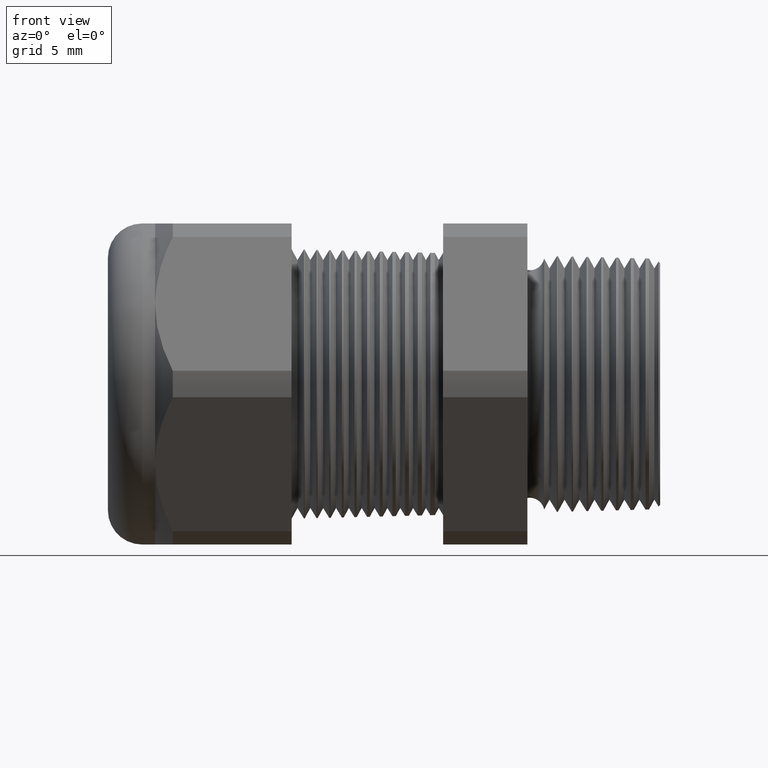
[diagram: clean part render]
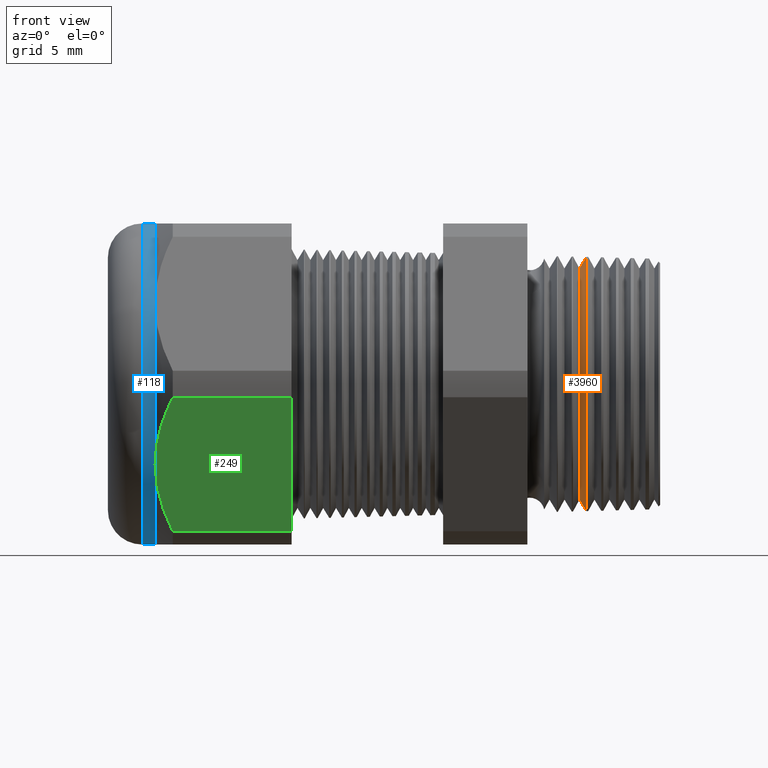
[diagram: same view with three faces highlighted in distinct colors, each labeled with its STEP entity id]
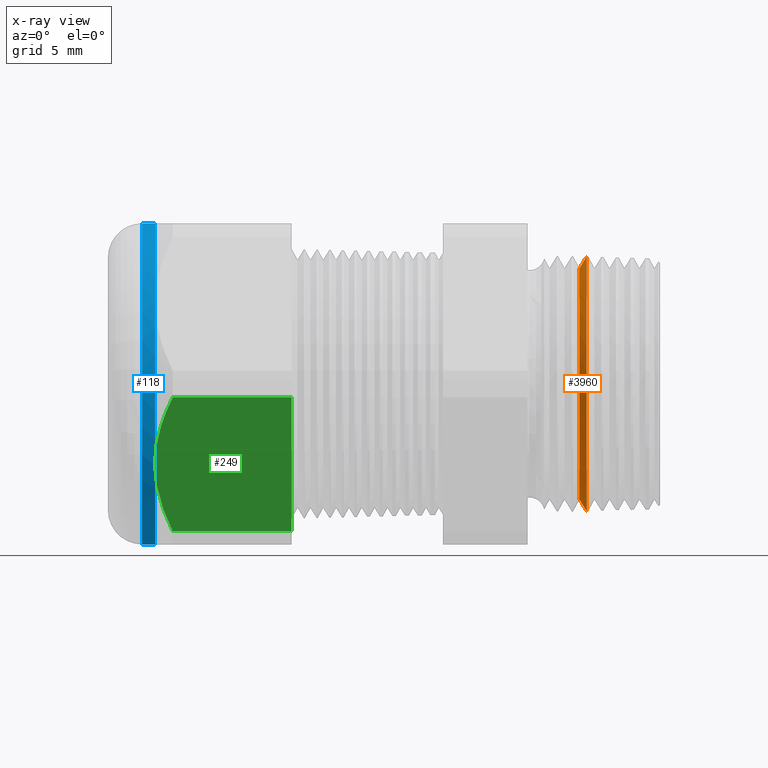
[diagram: x-ray of the same camera — body ghosted, the three highlighted faces saturated]
A machine part, front view with three faces highlighted in distinct colors.
The next image is the same camera in x-ray (body ghosted, the three faces saturated) — at least one of them is partly hidden behind the body in this view.
Their STEP definitions:

[orange] entity #3960 — the highlighted conical surface has half-angle 58.5 deg.
#21 = EDGE_CURVE ( 'NONE', #4418, #4415, #4696, .T. ) ;
#2367 = CIRCLE ( 'NONE', #2428, 0.2701319446236517000 ) ;
#2418 = DIRECTION ( 'NONE',  ( 0.0000000000000000000, 0.0000000000000000000, -1.000000000000000000 ) ) ;
#2419 = DIRECTION ( 'NONE',  ( 1.000000000000000000, 0.0000000000000000000, 0.0000000000000000000 ) ) ;
#2420 = CARTESIAN_POINT ( 'NONE',  ( -0.1884707356790751900, 0.0000000000000000000, 0.0000000000000000000 ) ) ;
#2421 = AXIS2_PLACEMENT_3D ( 'NONE', #2420, #2419, #2418 ) ;
#2423 = CONICAL_SURFACE ( 'NONE', #2421, 0.2701319446236517000, 1.021017612416701600 ) ;
#2424 = FACE_OUTER_BOUND ( 'NONE', #3961, .T. ) ;
#2425 = DIRECTION ( 'NONE',  ( 0.0000000000000000000, 0.0000000000000000000, -1.000000000000000000 ) ) ;
#2426 = DIRECTION ( 'NONE',  ( 1.000000000000000000, 0.0000000000000000000, 0.0000000000000000000 ) ) ;
#2427 = CARTESIAN_POINT ( 'NONE',  ( -0.1884707356790751900, 0.0000000000000000000, 0.0000000000000000000 ) ) ;
#2428 = AXIS2_PLACEMENT_3D ( 'NONE', #2427, #2426, #2425 ) ;
#3081 = DIRECTION ( 'NONE',  ( 0.5224985647159328100, 0.0000000000000000000, -0.8526401643541021700 ) ) ;
#3082 = VECTOR ( 'NONE', #3081, 39.37007874015748100 ) ;
#3083 = CARTESIAN_POINT ( 'NONE',  ( -0.1884707356790751900, 0.0000000000000000000, -0.2701319446236517000 ) ) ;
#3084 = LINE ( 'NONE', #3083, #3082 ) ;
#3166 = CARTESIAN_POINT ( 'NONE',  ( -0.1720291532523846000, 3.636737692998317700E-017, -0.2969621686457153400 ) ) ;
#3172 = CARTESIAN_POINT ( 'NONE',  ( -0.1720291532523846000, 0.0000000000000000000, 0.2969621686457153400 ) ) ;
#3173 = DIRECTION ( 'NONE',  ( 0.5224985647159328100, 1.044183048100724200E-016, 0.8526401643541021700 ) ) ;
#3174 = VECTOR ( 'NONE', #3173, 39.37007874015748100 ) ;
#3175 = CARTESIAN_POINT ( 'NONE',  ( -0.1884707356790751900, 3.308162213308051400E-017, 0.2701319446236517000 ) ) ;
#3176 = LINE ( 'NONE', #3175, #3174 ) ;
#3236 = CARTESIAN_POINT ( 'NONE',  ( -0.1884707356790751900, 0.0000000000000000000, 0.2701319446236517000 ) ) ;
#3237 = CARTESIAN_POINT ( 'NONE',  ( -0.1884707356790751900, 3.477493759266634500E-017, -0.2701319446236517000 ) ) ;
#3939 = ORIENTED_EDGE ( 'NONE', *, *, #4414, .F. ) ;
#3940 = ORIENTED_EDGE ( 'NONE', *, *, #3957, .T. ) ;
#3941 = ORIENTED_EDGE ( 'NONE', *, *, #4366, .T. ) ;
#3942 = ORIENTED_EDGE ( 'NONE', *, *, #21, .T. ) ;
#3957 = EDGE_CURVE ( 'NONE', #4445, #4444, #2367, .T. ) ;
#3960 = ADVANCED_FACE ( 'NONE', ( #2424 ), #2423, .T. ) ;
#3961 = EDGE_LOOP ( 'NONE', ( #3939, #3940, #3941, #3942 ) ) ;
#4366 = EDGE_CURVE ( 'NONE', #4444, #4418, #3084, .T. ) ;
#4414 = EDGE_CURVE ( 'NONE', #4445, #4415, #3176, .T. ) ;
#4415 = VERTEX_POINT ( 'NONE', #3172 ) ;
#4418 = VERTEX_POINT ( 'NONE', #3166 ) ;
#4444 = VERTEX_POINT ( 'NONE', #3237 ) ;
#4445 = VERTEX_POINT ( 'NONE', #3236 ) ;
#4692 = DIRECTION ( 'NONE',  ( 0.0000000000000000000, 0.0000000000000000000, -1.000000000000000000 ) ) ;
#4693 = DIRECTION ( 'NONE',  ( -1.000000000000000000, 0.0000000000000000000, 0.0000000000000000000 ) ) ;
#4694 = CARTESIAN_POINT ( 'NONE',  ( -0.1720291532523846000, 0.0000000000000000000, 0.0000000000000000000 ) ) ;
#4695 = AXIS2_PLACEMENT_3D ( 'NONE', #4694, #4693, #4692 ) ;
#4696 = CIRCLE ( 'NONE', #4695, 0.2969621686457154000 ) ;

[blue] entity #118 — the highlighted cylindrical surface (partial cylindrical patch) has radius 9.525 mm, axis along (1, 0, 0).
#98 = VERTEX_POINT ( 'NONE', #4906 ) ;
#105 = ORIENTED_EDGE ( 'NONE', *, *, #110, .T. ) ;
#106 = ORIENTED_EDGE ( 'NONE', *, *, #861, .T. ) ;
#107 = EDGE_LOOP ( 'NONE', ( #108, #105, #106, #140, #136, #122 ) ) ;
#108 = ORIENTED_EDGE ( 'NONE', *, *, #879, .F. ) ;
#110 = EDGE_CURVE ( 'NONE', #895, #894, #4941, .T. ) ;
#118 = ADVANCED_FACE ( 'NONE', ( #4930 ), #4927, .T. ) ;
#122 = ORIENTED_EDGE ( 'NONE', *, *, #129, .F. ) ;
#129 = EDGE_CURVE ( 'NONE', #880, #98, #4972, .T. ) ;
#130 = EDGE_CURVE ( 'NONE', #190, #889, #4967, .T. ) ;
#132 = EDGE_CURVE ( 'NONE', #98, #190, #4962, .T. ) ;
#136 = ORIENTED_EDGE ( 'NONE', *, *, #132, .F. ) ;
#140 = ORIENTED_EDGE ( 'NONE', *, *, #130, .F. ) ;
#190 = VERTEX_POINT ( 'NONE', #5088 ) ;
#861 = EDGE_CURVE ( 'NONE', #894, #889, #1557, .T. ) ;
#879 = EDGE_CURVE ( 'NONE', #895, #880, #1593, .T. ) ;
#880 = VERTEX_POINT ( 'NONE', #1585 ) ;
#889 = VERTEX_POINT ( 'NONE', #1567 ) ;
#894 = VERTEX_POINT ( 'NONE', #1618 ) ;
#895 = VERTEX_POINT ( 'NONE', #1617 ) ;
#1554 = DIRECTION ( 'NONE',  ( 1.000000000000000000, 0.0000000000000000000, 0.0000000000000000000 ) ) ;
#1555 = VECTOR ( 'NONE', #1554, 39.37007874015748100 ) ;
#1556 = CARTESIAN_POINT ( 'NONE',  ( 0.0000000000000000000, 0.0000000000000000000, -0.3750000000000001100 ) ) ;
#1557 = LINE ( 'NONE', #1556, #1555 ) ;
#1567 = CARTESIAN_POINT ( 'NONE',  ( -1.179763779527558800, 0.0000000000000000000, -0.3750000000000001100 ) ) ;
#1585 = CARTESIAN_POINT ( 'NONE',  ( -1.179763779527558800, 0.0000000000000000000, 0.3749999999999999400 ) ) ;
#1586 = DIRECTION ( 'NONE',  ( 1.000000000000000000, 0.0000000000000000000, 0.0000000000000000000 ) ) ;
#1587 = VECTOR ( 'NONE', #1586, 39.37007874015748100 ) ;
#1588 = CARTESIAN_POINT ( 'NONE',  ( 0.0000000000000000000, 4.592425496802576100E-017, 0.3750000000000001100 ) ) ;
#1593 = LINE ( 'NONE', #1588, #1587 ) ;
#1617 = CARTESIAN_POINT ( 'NONE',  ( -1.210000000000000000, 4.592425496802576100E-017, 0.3750000000000001100 ) ) ;
#1618 = CARTESIAN_POINT ( 'NONE',  ( -1.210000000000000000, 0.0000000000000000000, -0.3750000000000001100 ) ) ;
#4906 = CARTESIAN_POINT ( 'NONE',  ( -1.179763779527558800, -0.3247595264191646700, 0.1875000000000000600 ) ) ;
#4924 = DIRECTION ( 'NONE',  ( 0.0000000000000000000, 0.0000000000000000000, -1.000000000000000000 ) ) ;
#4925 = DIRECTION ( 'NONE',  ( 1.000000000000000000, 0.0000000000000000000, 0.0000000000000000000 ) ) ;
#4926 = AXIS2_PLACEMENT_3D ( 'NONE', #4929, #4925, #4924 ) ;
#4927 = CYLINDRICAL_SURFACE ( 'NONE', #4926, 0.3750000000000001100 ) ;
#4929 = CARTESIAN_POINT ( 'NONE',  ( 0.0000000000000000000, 0.0000000000000000000, 0.0000000000000000000 ) ) ;
#4930 = FACE_OUTER_BOUND ( 'NONE', #107, .T. ) ;
#4937 = DIRECTION ( 'NONE',  ( 0.0000000000000000000, 0.0000000000000000000, 1.000000000000000000 ) ) ;
#4938 = DIRECTION ( 'NONE',  ( 1.000000000000000000, 0.0000000000000000000, 0.0000000000000000000 ) ) ;
#4939 = CARTESIAN_POINT ( 'NONE',  ( -1.210000000000000000, 0.0000000000000000000, 0.0000000000000000000 ) ) ;
#4940 = AXIS2_PLACEMENT_3D ( 'NONE', #4939, #4938, #4937 ) ;
#4941 = CIRCLE ( 'NONE', #4940, 0.3750000000000001100 ) ;
#4958 = DIRECTION ( 'NONE',  ( 0.0000000000000000000, 0.0000000000000000000, -1.000000000000000000 ) ) ;
#4959 = DIRECTION ( 'NONE',  ( 1.000000000000000000, 0.0000000000000000000, 0.0000000000000000000 ) ) ;
#4960 = CARTESIAN_POINT ( 'NONE',  ( -1.179763779527558800, 0.0000000000000000000, 0.0000000000000000000 ) ) ;
#4961 = AXIS2_PLACEMENT_3D ( 'NONE', #4960, #4959, #4958 ) ;
#4962 = CIRCLE ( 'NONE', #4961, 0.3750000000000001100 ) ;
#4963 = DIRECTION ( 'NONE',  ( 0.0000000000000000000, 0.0000000000000000000, -1.000000000000000000 ) ) ;
#4964 = DIRECTION ( 'NONE',  ( 1.000000000000000000, 0.0000000000000000000, 0.0000000000000000000 ) ) ;
#4965 = CARTESIAN_POINT ( 'NONE',  ( -1.179763779527558800, 0.0000000000000000000, 0.0000000000000000000 ) ) ;
#4966 = AXIS2_PLACEMENT_3D ( 'NONE', #4965, #4964, #4963 ) ;
#4967 = CIRCLE ( 'NONE', #4966, 0.3750000000000001100 ) ;
#4968 = DIRECTION ( 'NONE',  ( 0.0000000000000000000, 0.0000000000000000000, -1.000000000000000000 ) ) ;
#4969 = DIRECTION ( 'NONE',  ( 1.000000000000000000, 0.0000000000000000000, 0.0000000000000000000 ) ) ;
#4970 = CARTESIAN_POINT ( 'NONE',  ( -1.179763779527558800, 0.0000000000000000000, 0.0000000000000000000 ) ) ;
#4971 = AXIS2_PLACEMENT_3D ( 'NONE', #4970, #4969, #4968 ) ;
#4972 = CIRCLE ( 'NONE', #4971, 0.3750000000000001100 ) ;
#5088 = CARTESIAN_POINT ( 'NONE',  ( -1.179763779527558800, -0.3247595264191645600, -0.1875000000000001900 ) ) ;

[green] entity #249 — the highlighted planar face has unit normal (0, -0.866, -0.5).
#154 = VERTEX_POINT ( 'NONE', #4982 ) ;
#156 = EDGE_CURVE ( 'NONE', #154, #162, #4981, .T. ) ;
#162 = VERTEX_POINT ( 'NONE', #5029 ) ;
#184 = VERTEX_POINT ( 'NONE', #5094 ) ;
#186 = ORIENTED_EDGE ( 'NONE', *, *, #730, .F. ) ;
#189 = ORIENTED_EDGE ( 'NONE', *, *, #199, .T. ) ;
#190 = VERTEX_POINT ( 'NONE', #5088 ) ;
#195 = ORIENTED_EDGE ( 'NONE', *, *, #196, .F. ) ;
#196 = EDGE_CURVE ( 'NONE', #154, #200, #5077, .T. ) ;
#199 = EDGE_CURVE ( 'NONE', #190, #184, #957, .T. ) ;
#200 = VERTEX_POINT ( 'NONE', #956 ) ;
#201 = ORIENTED_EDGE ( 'NONE', *, *, #156, .T. ) ;
#202 = EDGE_LOOP ( 'NONE', ( #201, #214, #189, #186, #195 ) ) ;
#214 = ORIENTED_EDGE ( 'NONE', *, *, #215, .T. ) ;
#215 = EDGE_CURVE ( 'NONE', #162, #190, #991, .T. ) ;
#249 = ADVANCED_FACE ( 'NONE', ( #1043 ), #1042, .T. ) ;
#730 = EDGE_CURVE ( 'NONE', #200, #184, #1297, .T. ) ;
#949 = CARTESIAN_POINT ( 'NONE',  ( -1.138513779527558800, -0.2344281053908201800, -0.3439586107409879900 ) ) ;
#950 = CARTESIAN_POINT ( 'NONE',  ( -1.151003202145915100, -0.2488160174420975000, -0.3190380160533434200 ) ) ;
#951 = CARTESIAN_POINT ( 'NONE',  ( -1.161459219999150000, -0.2636869420682234100, -0.2932808190453660100 ) ) ;
#952 = CARTESIAN_POINT ( 'NONE',  ( -1.175817769005222500, -0.2938118100972367800, -0.2411030170478076800 ) ) ;
#953 = CARTESIAN_POINT ( 'NONE',  ( -1.179763779527558400, -0.3091297520026593500, -0.2145715634002272300 ) ) ;
#954 = CARTESIAN_POINT ( 'NONE',  ( -1.179763779527558800, -0.3247595264191645600, -0.1875000000000001900 ) ) ;
#956 = CARTESIAN_POINT ( 'NONE',  ( -0.8608661417322833700, -0.2344281053908202100, -0.3439586107409880500 ) ) ;
#957 = B_SPLINE_CURVE_WITH_KNOTS ( 'NONE', 3,
 ( #954, #953, #952, #951, #950, #949 ),
 .UNSPECIFIED., .F., .F.,
 ( 4, 2, 4 ),
 ( 0.004709976344604660200, 0.007063225540252129700, 0.009416474735899599300 ),
 .UNSPECIFIED. ) ;
#981 = CARTESIAN_POINT ( 'NONE',  ( -1.179763779527558800, -0.3247595264191645600, -0.1875000000000001900 ) ) ;
#982 = CARTESIAN_POINT ( 'NONE',  ( -1.179763779527558400, -0.3325797762507455800, -0.1739549299638197500 ) ) ;
#983 = CARTESIAN_POINT ( 'NONE',  ( -1.178759730589040700, -0.3404835130999903600, -0.1602652561712736000 ) ) ;
#984 = CARTESIAN_POINT ( 'NONE',  ( -1.174926254644834200, -0.3559303281390047100, -0.1335105877085819800 ) ) ;
#985 = CARTESIAN_POINT ( 'NONE',  ( -1.172104445229484900, -0.3635409529853225200, -0.1203285987974131300 ) ) ;
#986 = CARTESIAN_POINT ( 'NONE',  ( -1.161298346633054000, -0.3860811521420284800, -0.08128782864527750500 ) ) ;
#987 = CARTESIAN_POINT ( 'NONE',  ( -1.150987746498826300, -0.4007208404219565500, -0.05593114473747130800 ) ) ;
#988 = CARTESIAN_POINT ( 'NONE',  ( -1.138513779527558800, -0.4150909474475088000, -0.03104138925901235900 ) ) ;
#991 = B_SPLINE_CURVE_WITH_KNOTS ( 'NONE', 3,
 ( #988, #987, #986, #985, #984, #983, #982, #981 ),
 .UNSPECIFIED., .F., .F.,
 ( 4, 2, 2, 4 ),
 ( 2.483253706005244800E-007, 0.002355112334987629600, 0.003532544339796146000, 0.004709976344604660200 ),
 .UNSPECIFIED. ) ;
#1038 = DIRECTION ( 'NONE',  ( 0.0000000000000000000, 0.5000000000000002200, -0.8660254037844384900 ) ) ;
#1039 = DIRECTION ( 'NONE',  ( 0.0000000000000000000, -0.8660254037844386000, -0.5000000000000003300 ) ) ;
#1040 = CARTESIAN_POINT ( 'NONE',  ( 0.0000000000000000000, -0.2344281053908202900, -0.3439586107409879900 ) ) ;
#1041 = AXIS2_PLACEMENT_3D ( 'NONE', #1040, #1039, #1038 ) ;
#1042 = PLANE ( 'NONE',  #1041 ) ;
#1043 = FACE_OUTER_BOUND ( 'NONE', #202, .T. ) ;
#1294 = DIRECTION ( 'NONE',  ( -1.000000000000000000, 0.0000000000000000000, 0.0000000000000000000 ) ) ;
#1295 = VECTOR ( 'NONE', #1294, 39.37007874015748100 ) ;
#1296 = CARTESIAN_POINT ( 'NONE',  ( 0.0000000000000000000, -0.2344281053908202100, -0.3439586107409880500 ) ) ;
#1297 = LINE ( 'NONE', #1296, #1295 ) ;
#4978 = DIRECTION ( 'NONE',  ( -1.000000000000000000, 0.0000000000000000000, 0.0000000000000000000 ) ) ;
#4979 = VECTOR ( 'NONE', #4978, 39.37007874015748100 ) ;
#4980 = CARTESIAN_POINT ( 'NONE',  ( 0.0000000000000000000, -0.4150909474475088000, -0.03104138925901237000 ) ) ;
#4981 = LINE ( 'NONE', #4980, #4979 ) ;
#4982 = CARTESIAN_POINT ( 'NONE',  ( -0.8608661417322833700, -0.4150909474475088000, -0.03104138925901237000 ) ) ;
#5029 = CARTESIAN_POINT ( 'NONE',  ( -1.138513779527558800, -0.4150909474475088000, -0.03104138925901235900 ) ) ;
#5074 = DIRECTION ( 'NONE',  ( 0.0000000000000000000, 0.5000000000000002200, -0.8660254037844384900 ) ) ;
#5075 = VECTOR ( 'NONE', #5074, 39.37007874015748900 ) ;
#5076 = CARTESIAN_POINT ( 'NONE',  ( -0.8608661417322833700, -0.2460095264191644600, -0.3238990010960492400 ) ) ;
#5077 = LINE ( 'NONE', #5076, #5075 ) ;
#5088 = CARTESIAN_POINT ( 'NONE',  ( -1.179763779527558800, -0.3247595264191645600, -0.1875000000000001900 ) ) ;
#5094 = CARTESIAN_POINT ( 'NONE',  ( -1.138513779527558800, -0.2344281053908201800, -0.3439586107409879900 ) ) ;